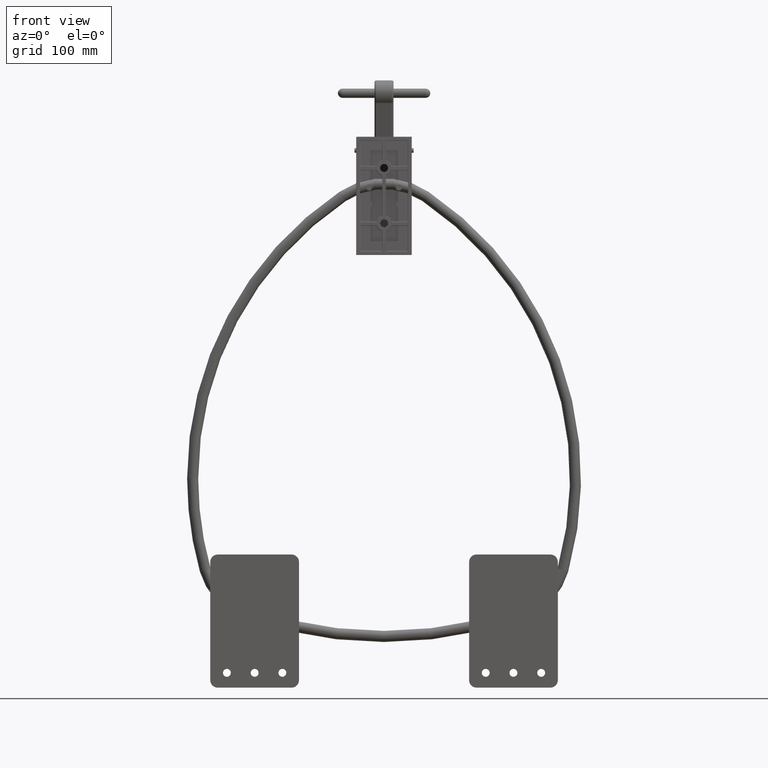
[diagram: clean part render]
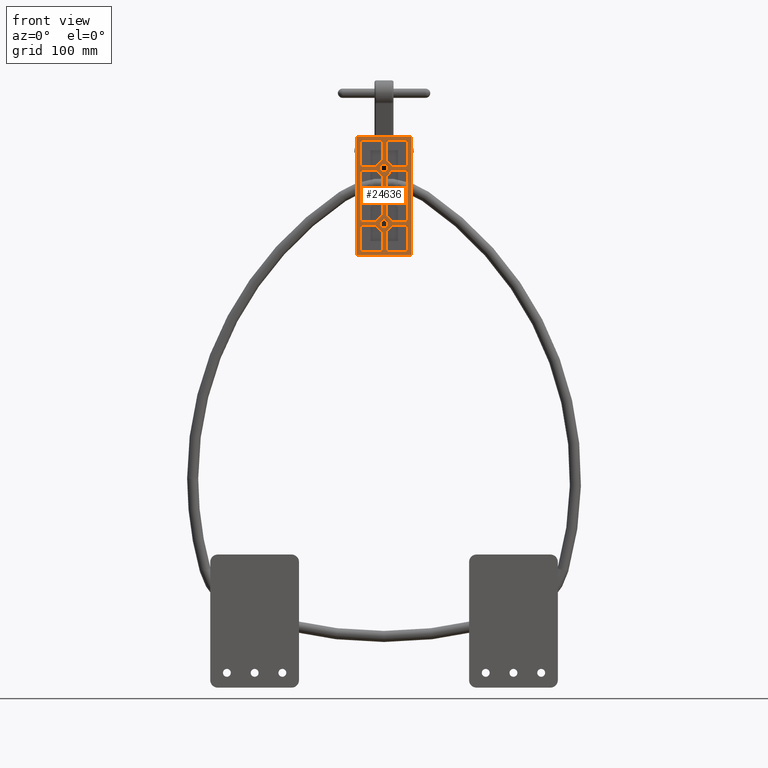
[diagram: same view with one face highlighted and labeled with its STEP entity id]
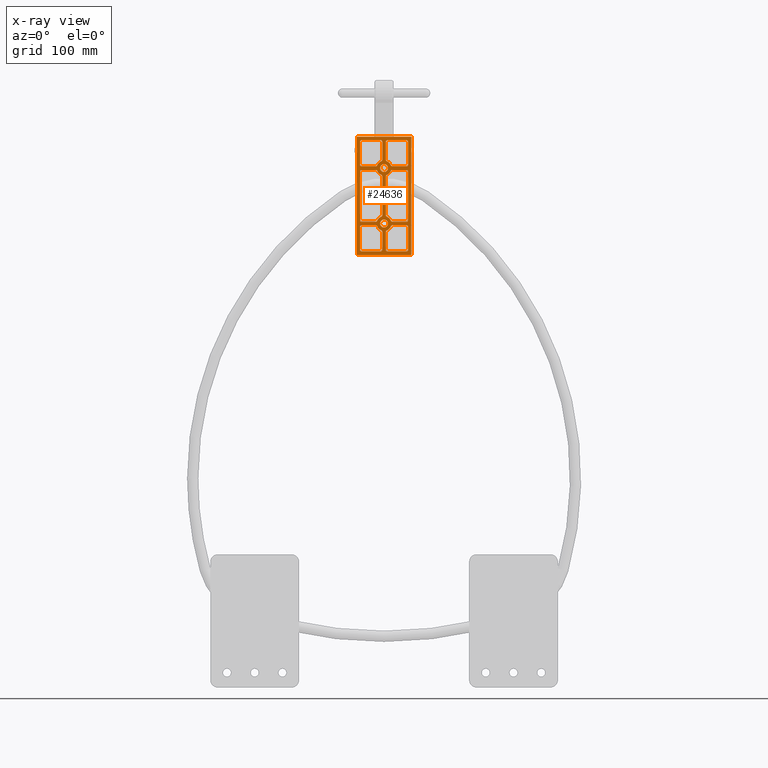
[diagram: x-ray of the same camera — body ghosted, the highlighted face saturated]
A machine part, front view. The second image highlights one B-rep face of the part: STEP entity #24636.
The next image is the same camera in x-ray: the body ghosted, the highlighted face saturated — about 0% of this face is hidden behind the body in this view.
In plain terms, the highlighted planar face has unit normal (0, 1, 0).
Its self-contained STEP definition (entity closure, byte-faithful):
#633 = DIRECTION ( 'NONE',  ( 0.0000000000000000000, -1.000000000000000000, 0.0000000000000000000 ) ) ;
#645 = CARTESIAN_POINT ( 'NONE',  ( -0.8335379963906127700, 0.0000000000000000000, 0.2722902887609477400 ) ) ;
#646 = CARTESIAN_POINT ( 'NONE',  ( -0.8750000000000001100, 0.0000000000000000000, 0.7710379963906123200 ) ) ;
#647 = DIRECTION ( 'NONE',  ( 0.0000000000000000000, 0.0000000000000000000, -1.000000000000000000 ) ) ;
#649 = DIRECTION ( 'NONE',  ( 0.0000000000000000000, 0.0000000000000000000, -1.000000000000000000 ) ) ;
#650 = CARTESIAN_POINT ( 'NONE',  ( -0.8335379963906127700, 0.0000000000000000000, 0.7710379963906125500 ) ) ;
#651 = DIRECTION ( 'NONE',  ( 0.0000000000000000000, -1.000000000000000000, 0.0000000000000000000 ) ) ;
#652 = DIRECTION ( 'NONE',  ( 0.0000000000000000000, 0.0000000000000000000, 1.000000000000000000 ) ) ;
#653 = CARTESIAN_POINT ( 'NONE',  ( 1.041462003609387300, 0.0000000000000000000, 0.2722902887609477400 ) ) ;
#654 = DIRECTION ( 'NONE',  ( 0.0000000000000000000, -1.000000000000000000, 0.0000000000000000000 ) ) ;
#655 = DIRECTION ( 'NONE',  ( 0.0000000000000000000, 0.0000000000000000000, -1.000000000000000000 ) ) ;
#656 = CARTESIAN_POINT ( 'NONE',  ( 0.9375000000000000000, 0.0000000000000000000, 0.0000000000000000000 ) ) ;
#657 = DIRECTION ( 'NONE',  ( -0.0000000000000000000, 1.000000000000000000, -0.0000000000000000000 ) ) ;
#658 = DIRECTION ( 'NONE',  ( 0.0000000000000000000, 0.0000000000000000000, -1.000000000000000000 ) ) ;
#4343 = EDGE_CURVE ( 'NONE', #22802, #22751, #6268, .T. ) ;
#4344 = EDGE_CURVE ( 'NONE', #22702, #22802, #6267, .T. ) ;
#4345 = EDGE_CURVE ( 'NONE', #22795, #22702, #6271, .T. ) ;
#4346 = EDGE_CURVE ( 'NONE', #22740, #22799, #6272, .T. ) ;
#4347 = EDGE_CURVE ( 'NONE', #22799, #22734, #6273, .T. ) ;
#4707 = EDGE_CURVE ( 'NONE', #22619, #22808, #31706, .T. ) ;
#4882 = EDGE_CURVE ( 'NONE', #22774, #22642, #22211, .T. ) ;
#4884 = EDGE_CURVE ( 'NONE', #22444, #22591, #22215, .T. ) ;
#4887 = EDGE_CURVE ( 'NONE', #22604, #22444, #22221, .T. ) ;
#4888 = EDGE_CURVE ( 'NONE', #22625, #22603, #22222, .T. ) ;
#4889 = EDGE_CURVE ( 'NONE', #22603, #22633, #22224, .T. ) ;
#4890 = EDGE_CURVE ( 'NONE', #22633, #22592, #22223, .T. ) ;
#4891 = EDGE_CURVE ( 'NONE', #22591, #22625, #22227, .T. ) ;
#4892 = EDGE_CURVE ( 'NONE', #22576, #22604, #22226, .T. ) ;
#4893 = EDGE_CURVE ( 'NONE', #22578, #22576, #22229, .T. ) ;
#4894 = EDGE_CURVE ( 'NONE', #22673, #22578, #22228, .T. ) ;
#4895 = EDGE_CURVE ( 'NONE', #22592, #22673, #22232, .T. ) ;
#4896 = EDGE_CURVE ( 'NONE', #22644, #22567, #22234, .T. ) ;
#4897 = EDGE_CURVE ( 'NONE', #22567, #22588, #22233, .T. ) ;
#4898 = EDGE_CURVE ( 'NONE', #22550, #22611, #22236, .T. ) ;
#4899 = EDGE_CURVE ( 'NONE', #22611, #22644, #22235, .T. ) ;
#4900 = EDGE_CURVE ( 'NONE', #22669, #22550, #22239, .T. ) ;
#4901 = EDGE_CURVE ( 'NONE', #22651, #22669, #22241, .T. ) ;
#4902 = EDGE_CURVE ( 'NONE', #22753, #22651, #22240, .T. ) ;
#4903 = EDGE_CURVE ( 'NONE', #22637, #22753, #22243, .T. ) ;
#4904 = EDGE_CURVE ( 'NONE', #22787, #22637, #22242, .T. ) ;
#4905 = EDGE_CURVE ( 'NONE', #22588, #22787, #22246, .T. ) ;
#4906 = EDGE_CURVE ( 'NONE', #22725, #22728, #22248, .T. ) ;
#4907 = EDGE_CURVE ( 'NONE', #22728, #22724, #22244, .T. ) ;
#4908 = EDGE_CURVE ( 'NONE', #22776, #22727, #22251, .T. ) ;
#4909 = EDGE_CURVE ( 'NONE', #22727, #22725, #22253, .T. ) ;
#4910 = EDGE_CURVE ( 'NONE', #22695, #22776, #22225, .T. ) ;
#4911 = EDGE_CURVE ( 'NONE', #22801, #22695, #22255, .T. ) ;
#4912 = EDGE_CURVE ( 'NONE', #22739, #22801, #22249, .T. ) ;
#4913 = EDGE_CURVE ( 'NONE', #22707, #22739, #22258, .T. ) ;
#4914 = EDGE_CURVE ( 'NONE', #22670, #22707, #22247, .T. ) ;
#4915 = EDGE_CURVE ( 'NONE', #22664, #22670, #22260, .T. ) ;
#4916 = EDGE_CURVE ( 'NONE', #22809, #22664, #22261, .T. ) ;
#4917 = EDGE_CURVE ( 'NONE', #22724, #22809, #22262, .T. ) ;
#4918 = EDGE_CURVE ( 'NONE', #22745, #22723, #22264, .T. ) ;
#4919 = EDGE_CURVE ( 'NONE', #22723, #22795, #22259, .T. ) ;
#4920 = EDGE_CURVE ( 'NONE', #22686, #22715, #22266, .T. ) ;
#4921 = EDGE_CURVE ( 'NONE', #22715, #22745, #22257, .T. ) ;
#4922 = EDGE_CURVE ( 'NONE', #22709, #22686, #22268, .T. ) ;
#4923 = EDGE_CURVE ( 'NONE', #22696, #22709, #22270, .T. ) ;
#4924 = EDGE_CURVE ( 'NONE', #22772, #22696, #22265, .T. ) ;
#4925 = EDGE_CURVE ( 'NONE', #22784, #22772, #22271, .T. ) ;
#4926 = EDGE_CURVE ( 'NONE', #22751, #22784, #22273, .T. ) ;
#5162 = AXIS2_PLACEMENT_3D ( 'NONE', #645, #633, #647 ) ;
#5166 = AXIS2_PLACEMENT_3D ( 'NONE', #650, #651, #652 ) ;
#5167 = AXIS2_PLACEMENT_3D ( 'NONE', #656, #657, #658 ) ;
#5168 = AXIS2_PLACEMENT_3D ( 'NONE', #653, #654, #655 ) ;
#5257 = AXIS2_PLACEMENT_3D ( 'NONE', #26125, #26126, #26127 ) ;
#5314 = AXIS2_PLACEMENT_3D ( 'NONE', #21360, #21372, #21374 ) ;
#5315 = AXIS2_PLACEMENT_3D ( 'NONE', #21376, #21378, #21380 ) ;
#5318 = AXIS2_PLACEMENT_3D ( 'NONE', #21381, #21384, #21386 ) ;
#5319 = AXIS2_PLACEMENT_3D ( 'NONE', #21403, #21405, #21407 ) ;
#5320 = AXIS2_PLACEMENT_3D ( 'NONE', #21392, #21395, #21397 ) ;
#5321 = AXIS2_PLACEMENT_3D ( 'NONE', #21413, #21415, #21417 ) ;
#5322 = AXIS2_PLACEMENT_3D ( 'NONE', #21440, #21443, #21444 ) ;
#5323 = AXIS2_PLACEMENT_3D ( 'NONE', #21419, #21422, #21424 ) ;
#5324 = AXIS2_PLACEMENT_3D ( 'NONE', #21429, #21432, #21434 ) ;
#5325 = AXIS2_PLACEMENT_3D ( 'NONE', #21466, #21469, #21471 ) ;
#5326 = AXIS2_PLACEMENT_3D ( 'NONE', #21446, #21449, #21451 ) ;
#5327 = AXIS2_PLACEMENT_3D ( 'NONE', #21456, #21459, #21461 ) ;
#5328 = AXIS2_PLACEMENT_3D ( 'NONE', #21525, #21528, #21530 ) ;
#5329 = AXIS2_PLACEMENT_3D ( 'NONE', #21472, #21476, #21478 ) ;
#5330 = AXIS2_PLACEMENT_3D ( 'NONE', #21474, #21493, #21494 ) ;
#5331 = AXIS2_PLACEMENT_3D ( 'NONE', #21462, #21486, #21488 ) ;
#5332 = AXIS2_PLACEMENT_3D ( 'NONE', #21532, #21534, #21536 ) ;
#5333 = AXIS2_PLACEMENT_3D ( 'NONE', #21484, #21502, #21503 ) ;
#5334 = AXIS2_PLACEMENT_3D ( 'NONE', #21490, #21512, #21514 ) ;
#5335 = AXIS2_PLACEMENT_3D ( 'NONE', #21499, #21522, #21523 ) ;
#5336 = AXIS2_PLACEMENT_3D ( 'NONE', #21538, #21541, #21543 ) ;
#5338 = AXIS2_PLACEMENT_3D ( 'NONE', #21549, #21568, #21570 ) ;
#5339 = AXIS2_PLACEMENT_3D ( 'NONE', #21520, #21551, #21553 ) ;
#5340 = AXIS2_PLACEMENT_3D ( 'NONE', #21540, #21562, #21564 ) ;
#5341 = AXIS2_PLACEMENT_3D ( 'NONE', #21566, #21585, #21587 ) ;
#5342 = AXIS2_PLACEMENT_3D ( 'NONE', #21559, #21579, #21581 ) ;
#5591 = AXIS2_PLACEMENT_3D ( 'NONE', #32918, #32944, #32945 ) ;
#5620 = AXIS2_PLACEMENT_3D ( 'NONE', #33037, #33039, #33040 ) ;
#5622 = AXIS2_PLACEMENT_3D ( 'NONE', #33054, #33057, #33058 ) ;
#6262 = VECTOR ( 'NONE', #649, 39.37007874015748100 ) ;
#6267 = LINE ( 'NONE', #646, #6262 ) ;
#6268 = CIRCLE ( 'NONE', #5162, 0.04146200360938727400 ) ;
#6271 = CIRCLE ( 'NONE', #5166, 0.04146200360938727400 ) ;
#6272 = CIRCLE ( 'NONE', #5168, 0.04146200360938727400 ) ;
#6273 = CIRCLE ( 'NONE', #5167, 0.2500000000000001100 ) ;
#7066 = ORIENTED_EDGE ( 'NONE', *, *, #4900, .F. ) ;
#7067 = ORIENTED_EDGE ( 'NONE', *, *, #4901, .F. ) ;
#7068 = ORIENTED_EDGE ( 'NONE', *, *, #4902, .F. ) ;
#7069 = ORIENTED_EDGE ( 'NONE', *, *, #4903, .F. ) ;
#7070 = ORIENTED_EDGE ( 'NONE', *, *, #4904, .F. ) ;
#7071 = ORIENTED_EDGE ( 'NONE', *, *, #4905, .F. ) ;
#7072 = ORIENTED_EDGE ( 'NONE', *, *, #4907, .F. ) ;
#7073 = ORIENTED_EDGE ( 'NONE', *, *, #4906, .F. ) ;
#7074 = ORIENTED_EDGE ( 'NONE', *, *, #4909, .F. ) ;
#7075 = ORIENTED_EDGE ( 'NONE', *, *, #4908, .F. ) ;
#7076 = ORIENTED_EDGE ( 'NONE', *, *, #4910, .F. ) ;
#7077 = ORIENTED_EDGE ( 'NONE', *, *, #4911, .F. ) ;
#7078 = ORIENTED_EDGE ( 'NONE', *, *, #4912, .F. ) ;
#7079 = ORIENTED_EDGE ( 'NONE', *, *, #4913, .F. ) ;
#7080 = ORIENTED_EDGE ( 'NONE', *, *, #4914, .F. ) ;
#7081 = ORIENTED_EDGE ( 'NONE', *, *, #4915, .F. ) ;
#7082 = ORIENTED_EDGE ( 'NONE', *, *, #4916, .F. ) ;
#7083 = ORIENTED_EDGE ( 'NONE', *, *, #4917, .F. ) ;
#7084 = ORIENTED_EDGE ( 'NONE', *, *, #4919, .F. ) ;
#7085 = ORIENTED_EDGE ( 'NONE', *, *, #4918, .F. ) ;
#7086 = ORIENTED_EDGE ( 'NONE', *, *, #4921, .F. ) ;
#7087 = ORIENTED_EDGE ( 'NONE', *, *, #4920, .F. ) ;
#7088 = ORIENTED_EDGE ( 'NONE', *, *, #4922, .F. ) ;
#7089 = ORIENTED_EDGE ( 'NONE', *, *, #4923, .F. ) ;
#7090 = ORIENTED_EDGE ( 'NONE', *, *, #4924, .F. ) ;
#7091 = ORIENTED_EDGE ( 'NONE', *, *, #4925, .F. ) ;
#7092 = ORIENTED_EDGE ( 'NONE', *, *, #4926, .F. ) ;
#7093 = ORIENTED_EDGE ( 'NONE', *, *, #4343, .F. ) ;
#7094 = ORIENTED_EDGE ( 'NONE', *, *, #4344, .F. ) ;
#7095 = ORIENTED_EDGE ( 'NONE', *, *, #4345, .F. ) ;
#7096 = ORIENTED_EDGE ( 'NONE', *, *, #4347, .F. ) ;
#7097 = ORIENTED_EDGE ( 'NONE', *, *, #4346, .F. ) ;
#7098 = ORIENTED_EDGE ( 'NONE', *, *, #7523, .F. ) ;
#7099 = ORIENTED_EDGE ( 'NONE', *, *, #4707, .F. ) ;
#7100 = ORIENTED_EDGE ( 'NONE', *, *, #7524, .F. ) ;
#7101 = ORIENTED_EDGE ( 'NONE', *, *, #7525, .F. ) ;
#7102 = ORIENTED_EDGE ( 'NONE', *, *, #32430, .F. ) ;
#7103 = ORIENTED_EDGE ( 'NONE', *, *, #32431, .F. ) ;
#7104 = ORIENTED_EDGE ( 'NONE', *, *, #32432, .F. ) ;
#7105 = ORIENTED_EDGE ( 'NONE', *, *, #32433, .F. ) ;
#7106 = ORIENTED_EDGE ( 'NONE', *, *, #32435, .F. ) ;
#7107 = ORIENTED_EDGE ( 'NONE', *, *, #32434, .F. ) ;
#7108 = ORIENTED_EDGE ( 'NONE', *, *, #32437, .F. ) ;
#7109 = ORIENTED_EDGE ( 'NONE', *, *, #32436, .F. ) ;
#7110 = ORIENTED_EDGE ( 'NONE', *, *, #32438, .F. ) ;
#7111 = ORIENTED_EDGE ( 'NONE', *, *, #32439, .F. ) ;
#7112 = ORIENTED_EDGE ( 'NONE', *, *, #32440, .F. ) ;
#7113 = ORIENTED_EDGE ( 'NONE', *, *, #32441, .F. ) ;
#7114 = ORIENTED_EDGE ( 'NONE', *, *, #32442, .F. ) ;
#7115 = ORIENTED_EDGE ( 'NONE', *, *, #32443, .F. ) ;
#7116 = ORIENTED_EDGE ( 'NONE', *, *, #32445, .T. ) ;
#7117 = ORIENTED_EDGE ( 'NONE', *, *, #8382, .T. ) ;
#7118 = ORIENTED_EDGE ( 'NONE', *, *, #32446, .T. ) ;
#7119 = ORIENTED_EDGE ( 'NONE', *, *, #8389, .T. ) ;
#7120 = ORIENTED_EDGE ( 'NONE', *, *, #4882, .T. ) ;
#7220 = ORIENTED_EDGE ( 'NONE', *, *, #4890, .F. ) ;
#7221 = ORIENTED_EDGE ( 'NONE', *, *, #4889, .F. ) ;
#7222 = ORIENTED_EDGE ( 'NONE', *, *, #4888, .F. ) ;
#7223 = ORIENTED_EDGE ( 'NONE', *, *, #4891, .F. ) ;
#7224 = ORIENTED_EDGE ( 'NONE', *, *, #4884, .F. ) ;
#7225 = ORIENTED_EDGE ( 'NONE', *, *, #4887, .F. ) ;
#7226 = ORIENTED_EDGE ( 'NONE', *, *, #4892, .F. ) ;
#7227 = ORIENTED_EDGE ( 'NONE', *, *, #4893, .F. ) ;
#7228 = ORIENTED_EDGE ( 'NONE', *, *, #4894, .F. ) ;
#7229 = ORIENTED_EDGE ( 'NONE', *, *, #4895, .F. ) ;
#7230 = ORIENTED_EDGE ( 'NONE', *, *, #4897, .F. ) ;
#7231 = ORIENTED_EDGE ( 'NONE', *, *, #4896, .F. ) ;
#7232 = ORIENTED_EDGE ( 'NONE', *, *, #4899, .F. ) ;
#7233 = ORIENTED_EDGE ( 'NONE', *, *, #4898, .F. ) ;
#7523 = EDGE_CURVE ( 'NONE', #22808, #22740, #24219, .T. ) ;
#7524 = EDGE_CURVE ( 'NONE', #22811, #22619, #24222, .T. ) ;
#7525 = EDGE_CURVE ( 'NONE', #22749, #22811, #24228, .T. ) ;
#8382 = EDGE_CURVE ( 'NONE', #31928, #31924, #24324, .T. ) ;
#8389 = EDGE_CURVE ( 'NONE', #23109, #23073, #24345, .T. ) ;
#11796 = PLANE ( 'NONE',  #25075 ) ;
#11800 = CARTESIAN_POINT ( 'NONE',  ( -2.000000000000003100, -2.185478394931410600E-015, 0.9375000000000000000 ) ) ;
#11801 = DIRECTION ( 'NONE',  ( 0.0000000000000000000, 1.000000000000000000, 0.0000000000000000000 ) ) ;
#11802 = DIRECTION ( 'NONE',  ( 0.0000000000000000000, -0.0000000000000000000, 1.000000000000000000 ) ) ;
#13023 = FACE_BOUND ( 'NONE', #18266, .T. ) ;
#13027 = FACE_BOUND ( 'NONE', #18267, .T. ) ;
#13030 = FACE_BOUND ( 'NONE', #18256, .T. ) ;
#13031 = FACE_BOUND ( 'NONE', #18263, .T. ) ;
#13032 = FACE_BOUND ( 'NONE', #18268, .T. ) ;
#13033 = FACE_BOUND ( 'NONE', #18264, .T. ) ;
#13034 = FACE_BOUND ( 'NONE', #18270, .T. ) ;
#13035 = FACE_BOUND ( 'NONE', #18265, .T. ) ;
#13036 = FACE_OUTER_BOUND ( 'NONE', #18271, .T. ) ;
#13439 = VECTOR ( 'NONE', #16881, 39.37007874015748100 ) ;
#13441 = LINE ( 'NONE', #16880, #13439 ) ;
#13443 = VECTOR ( 'NONE', #16877, 39.37007874015748100 ) ;
#13447 = LINE ( 'NONE', #16874, #13443 ) ;
#13448 = LINE ( 'NONE', #16888, #13452 ) ;
#13449 = LINE ( 'NONE', #16900, #13456 ) ;
#13450 = CIRCLE ( 'NONE', #25117, 0.04146200360938730900 ) ;
#13451 = LINE ( 'NONE', #16893, #13454 ) ;
#13452 = VECTOR ( 'NONE', #16889, 39.37007874015748100 ) ;
#13453 = CIRCLE ( 'NONE', #25184, 0.04146200360938737100 ) ;
#13454 = VECTOR ( 'NONE', #16894, 39.37007874015748100 ) ;
#13455 = CIRCLE ( 'NONE', #25276, 0.04146200360938730900 ) ;
#13456 = VECTOR ( 'NONE', #16901, 39.37007874015748100 ) ;
#13457 = CIRCLE ( 'NONE', #25281, 0.04146200360938727400 ) ;
#13458 = LINE ( 'NONE', #16895, #13459 ) ;
#13459 = VECTOR ( 'NONE', #16896, 39.37007874015748100 ) ;
#13460 = CIRCLE ( 'NONE', #25155, 0.04146200360938740600 ) ;
#13461 = LINE ( 'NONE', #16911, #13463 ) ;
#13462 = CIRCLE ( 'NONE', #25279, 0.04146200360938740600 ) ;
#13463 = VECTOR ( 'NONE', #16912, 39.37007874015748100 ) ;
#13464 = CIRCLE ( 'NONE', #25280, 0.2500000000000001100 ) ;
#13466 = CIRCLE ( 'NONE', #25278, 0.04146200360938737100 ) ;
#13467 = LINE ( 'NONE', #16921, #13469 ) ;
#13468 = CIRCLE ( 'NONE', #25282, 0.1329999999999999200 ) ;
#13469 = VECTOR ( 'NONE', #16922, 39.37007874015748100 ) ;
#13470 = CIRCLE ( 'NONE', #25277, 0.1329999999999999200 ) ;
#13473 = LINE ( 'NONE', #16923, #13474 ) ;
#13474 = VECTOR ( 'NONE', #16924, 39.37007874015748100 ) ;
#15625 = CARTESIAN_POINT ( 'NONE',  ( -0.9375000000000000000, -2.185478394931410600E-015, 0.1329999999999999200 ) ) ;
#15629 = CARTESIAN_POINT ( 'NONE',  ( -0.9375000000000000000, -2.185478394931410600E-015, -0.1329999999999999200 ) ) ;
#16873 = CARTESIAN_POINT ( 'NONE',  ( 1.209790288760948000, 0.0000000000000000000, 0.1039620036093873400 ) ) ;
#16874 = CARTESIAN_POINT ( 'NONE',  ( 1.875000000000002900, 0.0000000000000000000, 0.1039620036093876300 ) ) ;
#16875 = CARTESIAN_POINT ( 'NONE',  ( 1.833537996390615500, 0.0000000000000000000, 0.1039620036093873400 ) ) ;
#16876 = CARTESIAN_POINT ( 'NONE',  ( 1.833537996390615500, 0.0000000000000000000, -0.1039620036093873400 ) ) ;
#16877 = DIRECTION ( 'NONE',  ( 0.0000000000000000000, 0.0000000000000000000, 1.000000000000000000 ) ) ;
#16878 = DIRECTION ( 'NONE',  ( 0.0000000000000000000, -1.000000000000000000, 0.0000000000000000000 ) ) ;
#16879 = DIRECTION ( 'NONE',  ( 0.0000000000000000000, 0.0000000000000000000, 1.000000000000000000 ) ) ;
#16880 = CARTESIAN_POINT ( 'NONE',  ( 1.209790288760948000, 0.0000000000000000000, 0.06250000000000000000 ) ) ;
#16881 = DIRECTION ( 'NONE',  ( 1.000000000000000000, 0.0000000000000000000, 0.0000000000000000000 ) ) ;
#16882 = CARTESIAN_POINT ( 'NONE',  ( 1.833537996390615500, 0.0000000000000000000, -0.7710379963906125500 ) ) ;
#16883 = DIRECTION ( 'NONE',  ( 0.0000000000000000000, -1.000000000000000000, 0.0000000000000000000 ) ) ;
#16884 = DIRECTION ( 'NONE',  ( 0.0000000000000000000, 0.0000000000000000000, 1.000000000000000000 ) ) ;
#16885 = CARTESIAN_POINT ( 'NONE',  ( 1.041462003609387300, 0.0000000000000000000, -0.7710379963906125500 ) ) ;
#16886 = DIRECTION ( 'NONE',  ( 0.0000000000000000000, -1.000000000000000000, 0.0000000000000000000 ) ) ;
#16887 = DIRECTION ( 'NONE',  ( 0.0000000000000000000, 0.0000000000000000000, -1.000000000000000000 ) ) ;
#16888 = CARTESIAN_POINT ( 'NONE',  ( 1.209790288760948000, 0.0000000000000000000, -0.06250000000000000000 ) ) ;
#16889 = DIRECTION ( 'NONE',  ( -1.000000000000000000, -0.0000000000000000000, -0.0000000000000000000 ) ) ;
#16890 = CARTESIAN_POINT ( 'NONE',  ( 1.041462003609387600, 0.0000000000000000000, -0.2722902887609476900 ) ) ;
#16891 = DIRECTION ( 'NONE',  ( 0.0000000000000000000, -1.000000000000000000, 0.0000000000000000000 ) ) ;
#16892 = DIRECTION ( 'NONE',  ( 0.0000000000000000000, 0.0000000000000000000, -1.000000000000000000 ) ) ;
#16893 = CARTESIAN_POINT ( 'NONE',  ( 1.875000000000002900, 0.0000000000000000000, -0.7710379963906123200 ) ) ;
#16894 = DIRECTION ( 'NONE',  ( 0.0000000000000000000, 0.0000000000000000000, 1.000000000000000000 ) ) ;
#16895 = CARTESIAN_POINT ( 'NONE',  ( 1.041462003609387600, 0.0000000000000000000, -0.8125000000000000000 ) ) ;
#16896 = DIRECTION ( 'NONE',  ( 1.000000000000000000, 0.0000000000000000000, 0.0000000000000000000 ) ) ;
#16897 = CARTESIAN_POINT ( 'NONE',  ( 0.9375000000000000000, 0.0000000000000000000, 0.0000000000000000000 ) ) ;
#16898 = DIRECTION ( 'NONE',  ( 0.0000000000000000000, -1.000000000000000000, 0.0000000000000000000 ) ) ;
#16899 = DIRECTION ( 'NONE',  ( 0.0000000000000000000, 0.0000000000000000000, -1.000000000000000000 ) ) ;
#16900 = CARTESIAN_POINT ( 'NONE',  ( 1.000000000000000200, 0.0000000000000000000, -0.2722902887609476900 ) ) ;
#16901 = DIRECTION ( 'NONE',  ( -2.738707318222647100E-016, 0.0000000000000000000, -1.000000000000000000 ) ) ;
#16902 = CARTESIAN_POINT ( 'NONE',  ( 1.209790288760948000, 0.0000000000000000000, -0.1039620036093873200 ) ) ;
#16903 = DIRECTION ( 'NONE',  ( 0.0000000000000000000, -1.000000000000000000, 0.0000000000000000000 ) ) ;
#16904 = DIRECTION ( 'NONE',  ( 0.0000000000000000000, 0.0000000000000000000, 1.000000000000000000 ) ) ;
#16905 = CARTESIAN_POINT ( 'NONE',  ( -0.9375000000000000000, -2.185478394931410600E-015, 0.0000000000000000000 ) ) ;
#16906 = DIRECTION ( 'NONE',  ( -0.0000000000000000000, 1.000000000000000000, -0.0000000000000000000 ) ) ;
#16907 = DIRECTION ( 'NONE',  ( 0.0000000000000000000, 0.0000000000000000000, -1.000000000000000000 ) ) ;
#16908 = CARTESIAN_POINT ( 'NONE',  ( 0.9375000000000000000, -2.185478394931410600E-015, 0.0000000000000000000 ) ) ;
#16909 = DIRECTION ( 'NONE',  ( 0.0000000000000000000, -1.000000000000000000, 0.0000000000000000000 ) ) ;
#16910 = DIRECTION ( 'NONE',  ( 0.0000000000000000000, 0.0000000000000000000, -1.000000000000000000 ) ) ;
#16911 = CARTESIAN_POINT ( 'NONE',  ( -2.000000000000003100, -2.185478394931410600E-015, -0.9218749999999998900 ) ) ;
#16912 = DIRECTION ( 'NONE',  ( 1.000000000000000000, 0.0000000000000000000, 0.0000000000000000000 ) ) ;
#16914 = DIRECTION ( 'NONE',  ( -0.0000000000000000000, 1.000000000000000000, -0.0000000000000000000 ) ) ;
#16915 = DIRECTION ( 'NONE',  ( 0.0000000000000000000, 0.0000000000000000000, 1.000000000000000000 ) ) ;
#16917 = DIRECTION ( 'NONE',  ( -0.0000000000000000000, 1.000000000000000000, -0.0000000000000000000 ) ) ;
#16918 = DIRECTION ( 'NONE',  ( 0.0000000000000000000, 0.0000000000000000000, 1.000000000000000000 ) ) ;
#16921 = CARTESIAN_POINT ( 'NONE',  ( -2.000000000000003100, -2.185478394931410600E-015, 0.9218750000000000000 ) ) ;
#16922 = DIRECTION ( 'NONE',  ( -1.000000000000000000, -0.0000000000000000000, -0.0000000000000000000 ) ) ;
#16923 = CARTESIAN_POINT ( 'NONE',  ( 2.000000000000002700, -2.185478394931410600E-015, 0.9375000000000000000 ) ) ;
#16924 = DIRECTION ( 'NONE',  ( -0.0000000000000000000, -0.0000000000000000000, -1.000000000000000000 ) ) ;
#18256 = EDGE_LOOP ( 'NONE', ( #7220, #7221, #7222, #7223, #7224, #7225, #7226, #7227, #7228, #7229 ) ) ;
#18263 = EDGE_LOOP ( 'NONE', ( #7230, #7231, #7232, #7233, #7066, #7067, #7068, #7069, #7070, #7071 ) ) ;
#18264 = EDGE_LOOP ( 'NONE', ( #7072, #7073, #7074, #7075, #7076, #7077, #7078, #7079, #7080, #7081, #7082, #7083 ) ) ;
#18265 = EDGE_LOOP ( 'NONE', ( #7084, #7085, #7086, #7087, #7088, #7089, #7090, #7091, #7092, #7093, #7094, #7095 ) ) ;
#18266 = EDGE_LOOP ( 'NONE', ( #7096, #7097, #7098, #7099, #7100, #7101, #7102, #7103, #7104, #7105 ) ) ;
#18267 = EDGE_LOOP ( 'NONE', ( #7106, #7107, #7108, #7109, #7110, #7111, #7112, #7113, #7114, #7115 ) ) ;
#18268 = EDGE_LOOP ( 'NONE', ( #7116, #7117 ) ) ;
#18270 = EDGE_LOOP ( 'NONE', ( #7118, #7119 ) ) ;
#18271 = EDGE_LOOP ( 'NONE', ( #7120, #32093, #32094, #32095 ) ) ;
#20526 = CARTESIAN_POINT ( 'NONE',  ( -1.000000000000000000, 0.0000000000000000000, -0.7710379963906123200 ) ) ;
#20589 = CARTESIAN_POINT ( 'NONE',  ( -1.026672861575393700, 0.0000000000000000000, 0.2335555624652423400 ) ) ;
#20597 = CARTESIAN_POINT ( 'NONE',  ( 1.833537996390615500, -2.185478394931410600E-015, -0.06249999999999995100 ) ) ;
#20598 = CARTESIAN_POINT ( 'NONE',  ( -1.041462003609387600, -2.185478394931410600E-015, 0.8125000000000000000 ) ) ;
#20603 = CARTESIAN_POINT ( 'NONE',  ( -1.833537996390615800, 0.0000000000000000000, -0.8124999999999998900 ) ) ;
#20605 = CARTESIAN_POINT ( 'NONE',  ( -1.875000000000003300, -0.0000000000000000000, -0.7710379963906123200 ) ) ;
#20611 = CARTESIAN_POINT ( 'NONE',  ( -1.833537996390615800, 0.0000000000000000000, 0.8124999999999998900 ) ) ;
#20612 = CARTESIAN_POINT ( 'NONE',  ( 1.875000000000002900, 0.0000000000000000000, 0.1039620036093876300 ) ) ;
#20613 = CARTESIAN_POINT ( 'NONE',  ( -1.000000000000000000, -0.0000000000000000000, -0.2722902887609477400 ) ) ;
#20614 = CARTESIAN_POINT ( 'NONE',  ( -1.833537996390615800, -0.0000000000000000000, -0.06250000000000000000 ) ) ;
#20620 = CARTESIAN_POINT ( 'NONE',  ( -1.171055562465242300, 0.0000000000000000000, -0.08917286157539379400 ) ) ;
#20621 = CARTESIAN_POINT ( 'NONE',  ( -1.041462003609387600, -0.0000000000000000000, -0.8125000000000000000 ) ) ;
#20625 = CARTESIAN_POINT ( 'NONE',  ( -1.000000000000000000, 0.0000000000000000000, 0.2722902887609477400 ) ) ;
#20629 = CARTESIAN_POINT ( 'NONE',  ( 1.041462003609387600, 0.0000000000000000000, 0.8124999999999998900 ) ) ;
#20633 = CARTESIAN_POINT ( 'NONE',  ( -1.026672861575393700, 0.0000000000000000000, -0.2335555624652423400 ) ) ;
#20638 = CARTESIAN_POINT ( 'NONE',  ( -1.209790288760948000, -2.185478394931410600E-015, -0.06249999999999995100 ) ) ;
#20640 = CARTESIAN_POINT ( 'NONE',  ( -1.875000000000003300, 0.0000000000000000000, 0.1039620036093876300 ) ) ;
#20643 = CARTESIAN_POINT ( 'NONE',  ( -2.000000000000003100, -2.185478394931410600E-015, -0.9218749999999998900 ) ) ;
#20644 = CARTESIAN_POINT ( 'NONE',  ( -1.000000000000000000, 0.0000000000000000000, 0.7710379963906123200 ) ) ;
#20648 = CARTESIAN_POINT ( 'NONE',  ( -1.209790288760948000, 0.0000000000000000000, 0.06249999999999995100 ) ) ;
#20656 = CARTESIAN_POINT ( 'NONE',  ( -0.8483271384246062800, 0.0000000000000000000, -0.2335555624652423400 ) ) ;
#20660 = CARTESIAN_POINT ( 'NONE',  ( -1.171055562465242300, 0.0000000000000000000, 0.08917286157539389100 ) ) ;
#20661 = CARTESIAN_POINT ( 'NONE',  ( -0.8750000000000001100, 0.0000000000000000000, -0.2722902887609477400 ) ) ;
#20664 = CARTESIAN_POINT ( 'NONE',  ( -1.875000000000003300, -0.0000000000000000000, -0.1039620036093876300 ) ) ;
#20672 = CARTESIAN_POINT ( 'NONE',  ( 0.8483271384246062800, 0.0000000000000000000, 0.2335555624652423400 ) ) ;
#20674 = CARTESIAN_POINT ( 'NONE',  ( 2.000000000000002700, -2.185478394931410600E-015, 0.9218750000000000000 ) ) ;
#20676 = CARTESIAN_POINT ( 'NONE',  ( 1.833537996390615300, 0.0000000000000000000, -0.8124999999999998900 ) ) ;
#20677 = CARTESIAN_POINT ( 'NONE',  ( 1.209790288760948000, 0.0000000000000000000, -0.06249999999999995800 ) ) ;
#20678 = CARTESIAN_POINT ( 'NONE',  ( 0.8750000000000001100, 0.0000000000000000000, -0.7710379963906123200 ) ) ;
#20679 = CARTESIAN_POINT ( 'NONE',  ( 0.6652097112390522600, 0.0000000000000000000, 0.06250000000000001400 ) ) ;
#20682 = CARTESIAN_POINT ( 'NONE',  ( 1.000000000000000000, 0.0000000000000000000, -0.7710379963906123200 ) ) ;
#20683 = CARTESIAN_POINT ( 'NONE',  ( -0.8750000000000001100, 0.0000000000000000000, 0.7710379963906123200 ) ) ;
#20685 = CARTESIAN_POINT ( 'NONE',  ( 1.171055562465242300, 0.0000000000000000000, -0.08917286157539380800 ) ) ;
#20686 = CARTESIAN_POINT ( 'NONE',  ( -0.8750000000000001100, -0.0000000000000000000, -0.7710379963906123200 ) ) ;
#20688 = CARTESIAN_POINT ( 'NONE',  ( 0.7039444375347576600, 0.0000000000000000000, 0.08917286157539389100 ) ) ;
#20693 = CARTESIAN_POINT ( 'NONE',  ( 1.875000000000002900, 0.0000000000000000000, -0.1039620036093876300 ) ) ;
#20694 = CARTESIAN_POINT ( 'NONE',  ( 0.8750000000000001100, 0.0000000000000000000, 0.2722902887609477400 ) ) ;
#20696 = CARTESIAN_POINT ( 'NONE',  ( 1.875000000000002900, 0.0000000000000000000, -0.7710379963906123200 ) ) ;
#20702 = CARTESIAN_POINT ( 'NONE',  ( 0.8335379963906125500, -2.185478394931410600E-015, 0.8125000000000000000 ) ) ;
#20703 = CARTESIAN_POINT ( 'NONE',  ( -0.6652097112390522600, -0.0000000000000000000, -0.06249999999999997200 ) ) ;
#20704 = CARTESIAN_POINT ( 'NONE',  ( 0.7039444375347576600, 0.0000000000000000000, -0.08917286157539379400 ) ) ;
#20706 = CARTESIAN_POINT ( 'NONE',  ( 0.8483271384246060500, 0.0000000000000000000, -0.2335555624652422000 ) ) ;
#20707 = CARTESIAN_POINT ( 'NONE',  ( 0.6652097112390523700, -2.185478394931410600E-015, -0.06250000000000000000 ) ) ;
#20713 = CARTESIAN_POINT ( 'NONE',  ( 1.171055562465242300, 0.0000000000000000000, 0.08917286157539385000 ) ) ;
#20718 = CARTESIAN_POINT ( 'NONE',  ( -0.8335379963906124300, 0.0000000000000000000, -0.8124999999999998900 ) ) ;
#20719 = CARTESIAN_POINT ( 'NONE',  ( 1.000000000000000000, 0.0000000000000000000, 0.2722902887609477400 ) ) ;
#20723 = CARTESIAN_POINT ( 'NONE',  ( 0.8750000000000001100, 0.0000000000000000000, 0.7710379963906123200 ) ) ;
#20727 = CARTESIAN_POINT ( 'NONE',  ( 1.875000000000002900, 0.0000000000000000000, 0.7710379963906123200 ) ) ;
#20729 = CARTESIAN_POINT ( 'NONE',  ( -0.8483271384246062800, 0.0000000000000000000, 0.2335555624652423400 ) ) ;
#20731 = CARTESIAN_POINT ( 'NONE',  ( -1.833537996390615800, 0.0000000000000000000, 0.06250000000000000000 ) ) ;
#20735 = CARTESIAN_POINT ( 'NONE',  ( 1.833537996390615300, 0.0000000000000000000, 0.06250000000000002800 ) ) ;
#20739 = CARTESIAN_POINT ( 'NONE',  ( 1.000000000000000200, 0.0000000000000000000, -0.2722902887609476900 ) ) ;
#20740 = CARTESIAN_POINT ( 'NONE',  ( 2.000000000000002700, -2.185478394931410600E-015, -0.9218749999999998900 ) ) ;
#20746 = CARTESIAN_POINT ( 'NONE',  ( 1.026672861575393900, 0.0000000000000000000, -0.2335555624652422000 ) ) ;
#20749 = CARTESIAN_POINT ( 'NONE',  ( 1.041462003609387600, 0.0000000000000000000, -0.8125000000000000000 ) ) ;
#20750 = CARTESIAN_POINT ( 'NONE',  ( -0.6652097112390522600, 0.0000000000000000000, 0.06249999999999996500 ) ) ;
#20752 = CARTESIAN_POINT ( 'NONE',  ( -2.000000000000003100, -2.185478394931410600E-015, 0.9218750000000000000 ) ) ;
#20754 = CARTESIAN_POINT ( 'NONE',  ( 0.8750000000000000000, 0.0000000000000000000, -0.2722902887609476900 ) ) ;
#20758 = CARTESIAN_POINT ( 'NONE',  ( 1.209790288760948000, 0.0000000000000000000, 0.06250000000000000000 ) ) ;
#20762 = CARTESIAN_POINT ( 'NONE',  ( -0.7039444375347576600, 0.0000000000000000000, 0.08917286157539378000 ) ) ;
#20765 = CARTESIAN_POINT ( 'NONE',  ( -1.875000000000003300, 0.0000000000000000000, 0.7710379963906123200 ) ) ;
#20773 = CARTESIAN_POINT ( 'NONE',  ( -0.8335379963906124300, 0.0000000000000000000, 0.8124999999999998900 ) ) ;
#20777 = CARTESIAN_POINT ( 'NONE',  ( 1.026672861575393700, -2.185478394931410600E-015, 0.2335555624652423400 ) ) ;
#20779 = CARTESIAN_POINT ( 'NONE',  ( 0.8335379963906124300, 0.0000000000000000000, -0.8125000000000000000 ) ) ;
#20780 = CARTESIAN_POINT ( 'NONE',  ( -0.8750000000000001100, 0.0000000000000000000, 0.2722902887609477400 ) ) ;
#20786 = CARTESIAN_POINT ( 'NONE',  ( 1.000000000000000000, 0.0000000000000000000, 0.7710379963906123200 ) ) ;
#20787 = CARTESIAN_POINT ( 'NONE',  ( -0.7039444375347576600, 0.0000000000000000000, -0.08917286157539379400 ) ) ;
#20789 = CARTESIAN_POINT ( 'NONE',  ( 1.833537996390615300, 0.0000000000000000000, 0.8125000000000000000 ) ) ;
#21345 = CARTESIAN_POINT ( 'NONE',  ( -2.000000000000003100, -2.185478394931410600E-015, 0.9375000000000000000 ) ) ;
#21347 = DIRECTION ( 'NONE',  ( -0.0000000000000000000, -0.0000000000000000000, -1.000000000000000000 ) ) ;
#21354 = CARTESIAN_POINT ( 'NONE',  ( -1.833537996390615800, -0.0000000000000000000, -0.06250000000000000000 ) ) ;
#21356 = CARTESIAN_POINT ( 'NONE',  ( -1.000000000000000000, -0.0000000000000000000, -0.2722902887609477400 ) ) ;
#21358 = DIRECTION ( 'NONE',  ( -0.0000000000000000000, -0.0000000000000000000, 1.000000000000000000 ) ) ;
#21360 = CARTESIAN_POINT ( 'NONE',  ( -1.041462003609387300, -0.0000000000000000000, -0.7710379963906125500 ) ) ;
#21372 = DIRECTION ( 'NONE',  ( 0.0000000000000000000, -1.000000000000000000, 0.0000000000000000000 ) ) ;
#21374 = DIRECTION ( 'NONE',  ( 0.0000000000000000000, 0.0000000000000000000, 1.000000000000000000 ) ) ;
#21376 = CARTESIAN_POINT ( 'NONE',  ( -0.9375000000000000000, 0.0000000000000000000, 0.0000000000000000000 ) ) ;
#21378 = DIRECTION ( 'NONE',  ( -0.0000000000000000000, 1.000000000000000000, -0.0000000000000000000 ) ) ;
#21380 = DIRECTION ( 'NONE',  ( 0.0000000000000000000, 0.0000000000000000000, -1.000000000000000000 ) ) ;
#21381 = CARTESIAN_POINT ( 'NONE',  ( -1.209790288760948000, -0.0000000000000000000, -0.1039620036093873400 ) ) ;
#21384 = DIRECTION ( 'NONE',  ( 0.0000000000000000000, -1.000000000000000000, 0.0000000000000000000 ) ) ;
#21386 = DIRECTION ( 'NONE',  ( 0.0000000000000000000, 0.0000000000000000000, 1.000000000000000000 ) ) ;
#21389 = CARTESIAN_POINT ( 'NONE',  ( -1.833537996390615800, -0.0000000000000000000, -0.8125000000000000000 ) ) ;
#21391 = DIRECTION ( 'NONE',  ( -1.000000000000000000, -0.0000000000000000000, -0.0000000000000000000 ) ) ;
#21392 = CARTESIAN_POINT ( 'NONE',  ( -1.041462003609387300, -0.0000000000000000000, -0.2722902887609477400 ) ) ;
#21395 = DIRECTION ( 'NONE',  ( 0.0000000000000000000, -1.000000000000000000, 0.0000000000000000000 ) ) ;
#21397 = DIRECTION ( 'NONE',  ( 0.0000000000000000000, 0.0000000000000000000, 1.000000000000000000 ) ) ;
#21399 = CARTESIAN_POINT ( 'NONE',  ( -1.875000000000003300, -0.0000000000000000000, -0.1039620036093876300 ) ) ;
#21401 = DIRECTION ( 'NONE',  ( 1.000000000000000000, 0.0000000000000000000, 0.0000000000000000000 ) ) ;
#21403 = CARTESIAN_POINT ( 'NONE',  ( -1.833537996390616000, -0.0000000000000000000, -0.7710379963906125500 ) ) ;
#21405 = DIRECTION ( 'NONE',  ( 0.0000000000000000000, -1.000000000000000000, 0.0000000000000000000 ) ) ;
#21407 = DIRECTION ( 'NONE',  ( 0.0000000000000000000, 0.0000000000000000000, 1.000000000000000000 ) ) ;
#21409 = CARTESIAN_POINT ( 'NONE',  ( -1.041462003609387600, 0.0000000000000000000, 0.8125000000000000000 ) ) ;
#21411 = DIRECTION ( 'NONE',  ( 0.0000000000000000000, 0.0000000000000000000, -1.000000000000000000 ) ) ;
#21413 = CARTESIAN_POINT ( 'NONE',  ( -1.833537996390616000, -0.0000000000000000000, -0.1039620036093873400 ) ) ;
#21415 = DIRECTION ( 'NONE',  ( 0.0000000000000000000, -1.000000000000000000, 0.0000000000000000000 ) ) ;
#21417 = DIRECTION ( 'NONE',  ( 0.0000000000000000000, 0.0000000000000000000, -1.000000000000000000 ) ) ;
#21419 = CARTESIAN_POINT ( 'NONE',  ( -1.041462003609387300, 0.0000000000000000000, 0.7710379963906125500 ) ) ;
#21422 = DIRECTION ( 'NONE',  ( 0.0000000000000000000, -1.000000000000000000, 0.0000000000000000000 ) ) ;
#21424 = DIRECTION ( 'NONE',  ( 0.0000000000000000000, 0.0000000000000000000, -1.000000000000000000 ) ) ;
#21426 = CARTESIAN_POINT ( 'NONE',  ( -1.000000000000000000, 0.0000000000000000000, 0.7710379963906123200 ) ) ;
#21428 = DIRECTION ( 'NONE',  ( -1.000000000000000000, 0.0000000000000000000, 0.0000000000000000000 ) ) ;
#21429 = CARTESIAN_POINT ( 'NONE',  ( -1.041462003609387300, 0.0000000000000000000, 0.2722902887609477400 ) ) ;
#21432 = DIRECTION ( 'NONE',  ( 0.0000000000000000000, -1.000000000000000000, 0.0000000000000000000 ) ) ;
#21434 = DIRECTION ( 'NONE',  ( 0.0000000000000000000, 0.0000000000000000000, 1.000000000000000000 ) ) ;
#21435 = CARTESIAN_POINT ( 'NONE',  ( -1.833537996390615800, 0.0000000000000000000, 0.06250000000000000000 ) ) ;
#21438 = DIRECTION ( 'NONE',  ( -0.0000000000000000000, -0.0000000000000000000, 1.000000000000000000 ) ) ;
#21440 = CARTESIAN_POINT ( 'NONE',  ( -0.9375000000000000000, 0.0000000000000000000, 0.0000000000000000000 ) ) ;
#21443 = DIRECTION ( 'NONE',  ( -0.0000000000000000000, 1.000000000000000000, -0.0000000000000000000 ) ) ;
#21444 = DIRECTION ( 'NONE',  ( 0.0000000000000000000, 0.0000000000000000000, -1.000000000000000000 ) ) ;
#21446 = CARTESIAN_POINT ( 'NONE',  ( -1.209790288760948000, 0.0000000000000000000, 0.1039620036093873200 ) ) ;
#21449 = DIRECTION ( 'NONE',  ( 0.0000000000000000000, -1.000000000000000000, 0.0000000000000000000 ) ) ;
#21451 = DIRECTION ( 'NONE',  ( 0.0000000000000000000, 0.0000000000000000000, -1.000000000000000000 ) ) ;
#21453 = CARTESIAN_POINT ( 'NONE',  ( -1.875000000000003300, 0.0000000000000000000, 0.7710379963906123200 ) ) ;
#21455 = DIRECTION ( 'NONE',  ( 1.000000000000000000, 0.0000000000000000000, -1.368666349515377200E-017 ) ) ;
#21456 = CARTESIAN_POINT ( 'NONE',  ( -1.833537996390616000, 0.0000000000000000000, 0.1039620036093873400 ) ) ;
#21459 = DIRECTION ( 'NONE',  ( 0.0000000000000000000, -1.000000000000000000, 0.0000000000000000000 ) ) ;
#21461 = DIRECTION ( 'NONE',  ( 0.0000000000000000000, 0.0000000000000000000, 1.000000000000000000 ) ) ;
#21462 = CARTESIAN_POINT ( 'NONE',  ( 0.8335379963906125500, 0.0000000000000000000, -0.2722902887609476900 ) ) ;
#21465 = DIRECTION ( 'NONE',  ( 0.0000000000000000000, 0.0000000000000000000, -1.000000000000000000 ) ) ;
#21466 = CARTESIAN_POINT ( 'NONE',  ( -1.833537996390616000, 0.0000000000000000000, 0.7710379963906125500 ) ) ;
#21469 = DIRECTION ( 'NONE',  ( 0.0000000000000000000, -1.000000000000000000, 0.0000000000000000000 ) ) ;
#21471 = DIRECTION ( 'NONE',  ( 0.0000000000000000000, 0.0000000000000000000, -1.000000000000000000 ) ) ;
#21472 = CARTESIAN_POINT ( 'NONE',  ( 0.6652097112390521500, 0.0000000000000000000, -0.1039620036093873400 ) ) ;
#21474 = CARTESIAN_POINT ( 'NONE',  ( 0.9375000000000000000, 0.0000000000000000000, 0.0000000000000000000 ) ) ;
#21476 = DIRECTION ( 'NONE',  ( 0.0000000000000000000, -1.000000000000000000, 0.0000000000000000000 ) ) ;
#21478 = DIRECTION ( 'NONE',  ( 0.0000000000000000000, 0.0000000000000000000, 1.000000000000000000 ) ) ;
#21480 = CARTESIAN_POINT ( 'NONE',  ( -0.6652097112390522600, -0.0000000000000000000, -0.06249999999999997200 ) ) ;
#21482 = DIRECTION ( 'NONE',  ( -1.000000000000000000, -0.0000000000000000000, 1.925037661649439000E-017 ) ) ;
#21484 = CARTESIAN_POINT ( 'NONE',  ( 0.8335379963906126600, 0.0000000000000000000, -0.7710379963906125500 ) ) ;
#21486 = DIRECTION ( 'NONE',  ( 0.0000000000000000000, -1.000000000000000000, 0.0000000000000000000 ) ) ;
#21488 = DIRECTION ( 'NONE',  ( 0.0000000000000000000, 0.0000000000000000000, -1.000000000000000000 ) ) ;
#21490 = CARTESIAN_POINT ( 'NONE',  ( -0.8335379963906127700, -0.0000000000000000000, -0.7710379963906125500 ) ) ;
#21493 = DIRECTION ( 'NONE',  ( -0.0000000000000000000, 1.000000000000000000, -0.0000000000000000000 ) ) ;
#21494 = DIRECTION ( 'NONE',  ( 0.0000000000000000000, 0.0000000000000000000, -1.000000000000000000 ) ) ;
#21496 = CARTESIAN_POINT ( 'NONE',  ( 0.8750000000000000000, 0.0000000000000000000, -0.2722902887609476900 ) ) ;
#21498 = DIRECTION ( 'NONE',  ( -2.738707318222647100E-016, -0.0000000000000000000, 1.000000000000000000 ) ) ;
#21499 = CARTESIAN_POINT ( 'NONE',  ( -0.8335379963906127700, -0.0000000000000000000, -0.2722902887609477400 ) ) ;
#21502 = DIRECTION ( 'NONE',  ( 0.0000000000000000000, -1.000000000000000000, 0.0000000000000000000 ) ) ;
#21503 = DIRECTION ( 'NONE',  ( 0.0000000000000000000, 0.0000000000000000000, 1.000000000000000000 ) ) ;
#21506 = CARTESIAN_POINT ( 'NONE',  ( -0.8335379963906124300, -0.0000000000000000000, -0.8125000000000000000 ) ) ;
#21508 = DIRECTION ( 'NONE',  ( 1.000000000000000000, 0.0000000000000000000, 0.0000000000000000000 ) ) ;
#21512 = DIRECTION ( 'NONE',  ( 0.0000000000000000000, -1.000000000000000000, 0.0000000000000000000 ) ) ;
#21514 = DIRECTION ( 'NONE',  ( 0.0000000000000000000, 0.0000000000000000000, -1.000000000000000000 ) ) ;
#21516 = CARTESIAN_POINT ( 'NONE',  ( -0.8750000000000001100, -0.0000000000000000000, -0.2722902887609477400 ) ) ;
#21518 = DIRECTION ( 'NONE',  ( 0.0000000000000000000, 0.0000000000000000000, -1.000000000000000000 ) ) ;
#21520 = CARTESIAN_POINT ( 'NONE',  ( 0.8335379963906127700, 0.0000000000000000000, 0.2722902887609477400 ) ) ;
#21522 = DIRECTION ( 'NONE',  ( 0.0000000000000000000, -1.000000000000000000, 0.0000000000000000000 ) ) ;
#21523 = DIRECTION ( 'NONE',  ( 0.0000000000000000000, 0.0000000000000000000, -1.000000000000000000 ) ) ;
#21525 = CARTESIAN_POINT ( 'NONE',  ( -0.9375000000000000000, 0.0000000000000000000, 0.0000000000000000000 ) ) ;
#21528 = DIRECTION ( 'NONE',  ( -0.0000000000000000000, 1.000000000000000000, -0.0000000000000000000 ) ) ;
#21530 = DIRECTION ( 'NONE',  ( 0.0000000000000000000, 0.0000000000000000000, -1.000000000000000000 ) ) ;
#21532 = CARTESIAN_POINT ( 'NONE',  ( -0.6652097112390522600, -0.0000000000000000000, -0.1039620036093873200 ) ) ;
#21534 = DIRECTION ( 'NONE',  ( 0.0000000000000000000, -1.000000000000000000, 0.0000000000000000000 ) ) ;
#21536 = DIRECTION ( 'NONE',  ( 0.0000000000000000000, 0.0000000000000000000, -1.000000000000000000 ) ) ;
#21538 = CARTESIAN_POINT ( 'NONE',  ( 0.8335379963906127700, 0.0000000000000000000, 0.7710379963906125500 ) ) ;
#21540 = CARTESIAN_POINT ( 'NONE',  ( 0.9375000000000000000, 0.0000000000000000000, 0.0000000000000000000 ) ) ;
#21541 = DIRECTION ( 'NONE',  ( 0.0000000000000000000, -1.000000000000000000, 0.0000000000000000000 ) ) ;
#21543 = DIRECTION ( 'NONE',  ( 0.0000000000000000000, 0.0000000000000000000, -1.000000000000000000 ) ) ;
#21546 = CARTESIAN_POINT ( 'NONE',  ( 0.8335379963906124300, 0.0000000000000000000, 0.8125000000000000000 ) ) ;
#21547 = DIRECTION ( 'NONE',  ( -1.000000000000000000, 0.0000000000000000000, 0.0000000000000000000 ) ) ;
#21549 = CARTESIAN_POINT ( 'NONE',  ( 0.6652097112390522600, 0.0000000000000000000, 0.1039620036093873200 ) ) ;
#21551 = DIRECTION ( 'NONE',  ( 0.0000000000000000000, -1.000000000000000000, 0.0000000000000000000 ) ) ;
#21553 = DIRECTION ( 'NONE',  ( 0.0000000000000000000, 0.0000000000000000000, 1.000000000000000000 ) ) ;
#21556 = CARTESIAN_POINT ( 'NONE',  ( 0.8750000000000001100, 0.0000000000000000000, 0.7710379963906123200 ) ) ;
#21557 = DIRECTION ( 'NONE',  ( -0.0000000000000000000, -0.0000000000000000000, 1.000000000000000000 ) ) ;
#21559 = CARTESIAN_POINT ( 'NONE',  ( -0.6652097112390522600, 0.0000000000000000000, 0.1039620036093873000 ) ) ;
#21562 = DIRECTION ( 'NONE',  ( -0.0000000000000000000, 1.000000000000000000, -0.0000000000000000000 ) ) ;
#21564 = DIRECTION ( 'NONE',  ( 0.0000000000000000000, 0.0000000000000000000, -1.000000000000000000 ) ) ;
#21566 = CARTESIAN_POINT ( 'NONE',  ( -0.9375000000000000000, 0.0000000000000000000, 0.0000000000000000000 ) ) ;
#21568 = DIRECTION ( 'NONE',  ( 0.0000000000000000000, -1.000000000000000000, 0.0000000000000000000 ) ) ;
#21570 = DIRECTION ( 'NONE',  ( 0.0000000000000000000, 0.0000000000000000000, -1.000000000000000000 ) ) ;
#21573 = CARTESIAN_POINT ( 'NONE',  ( -0.6652097112390522600, 0.0000000000000000000, 0.06249999999999996500 ) ) ;
#21574 = DIRECTION ( 'NONE',  ( 1.000000000000000000, 0.0000000000000000000, 6.416792205498128400E-018 ) ) ;
#21579 = DIRECTION ( 'NONE',  ( 0.0000000000000000000, -1.000000000000000000, 0.0000000000000000000 ) ) ;
#21581 = DIRECTION ( 'NONE',  ( 0.0000000000000000000, 0.0000000000000000000, 1.000000000000000000 ) ) ;
#21585 = DIRECTION ( 'NONE',  ( -0.0000000000000000000, 1.000000000000000000, -0.0000000000000000000 ) ) ;
#21587 = DIRECTION ( 'NONE',  ( 0.0000000000000000000, 0.0000000000000000000, -1.000000000000000000 ) ) ;
#22208 = VECTOR ( 'NONE', #21401, 39.37007874015748100 ) ;
#22211 = LINE ( 'NONE', #21345, #22212 ) ;
#22212 = VECTOR ( 'NONE', #21347, 39.37007874015748100 ) ;
#22214 = VECTOR ( 'NONE', #21391, 39.37007874015748100 ) ;
#22215 = LINE ( 'NONE', #21356, #22216 ) ;
#22216 = VECTOR ( 'NONE', #21358, 39.37007874015748100 ) ;
#22220 = VECTOR ( 'NONE', #21411, 39.37007874015748100 ) ;
#22221 = CIRCLE ( 'NONE', #5314, 0.04146200360938727400 ) ;
#22222 = CIRCLE ( 'NONE', #5315, 0.2500000000000001100 ) ;
#22223 = LINE ( 'NONE', #21354, #22214 ) ;
#22224 = CIRCLE ( 'NONE', #5318, 0.04146200360938737100 ) ;
#22225 = LINE ( 'NONE', #21496, #22250 ) ;
#22226 = LINE ( 'NONE', #21389, #22208 ) ;
#22227 = CIRCLE ( 'NONE', #5320, 0.04146200360938727400 ) ;
#22228 = LINE ( 'NONE', #21399, #22220 ) ;
#22229 = CIRCLE ( 'NONE', #5319, 0.04146200360938727400 ) ;
#22230 = VECTOR ( 'NONE', #21428, 39.37007874015748100 ) ;
#22231 = VECTOR ( 'NONE', #21438, 39.37007874015748100 ) ;
#22232 = CIRCLE ( 'NONE', #5321, 0.04146200360938730900 ) ;
#22233 = LINE ( 'NONE', #21409, #22230 ) ;
#22234 = CIRCLE ( 'NONE', #5323, 0.04146200360938727400 ) ;
#22235 = LINE ( 'NONE', #21426, #22231 ) ;
#22236 = CIRCLE ( 'NONE', #5324, 0.04146200360938727400 ) ;
#22237 = VECTOR ( 'NONE', #21455, 39.37007874015748100 ) ;
#22238 = VECTOR ( 'NONE', #21465, 39.37007874015748100 ) ;
#22239 = CIRCLE ( 'NONE', #5322, 0.2500000000000001100 ) ;
#22240 = LINE ( 'NONE', #21435, #22237 ) ;
#22241 = CIRCLE ( 'NONE', #5326, 0.04146200360938737100 ) ;
#22242 = LINE ( 'NONE', #21453, #22238 ) ;
#22243 = CIRCLE ( 'NONE', #5327, 0.04146200360938730900 ) ;
#22244 = LINE ( 'NONE', #21480, #22245 ) ;
#22245 = VECTOR ( 'NONE', #21482, 39.37007874015748100 ) ;
#22246 = CIRCLE ( 'NONE', #5325, 0.04146200360938727400 ) ;
#22247 = LINE ( 'NONE', #21516, #22254 ) ;
#22248 = CIRCLE ( 'NONE', #5329, 0.04146200360938737100 ) ;
#22249 = LINE ( 'NONE', #21506, #22252 ) ;
#22250 = VECTOR ( 'NONE', #21498, 39.37007874015748100 ) ;
#22251 = CIRCLE ( 'NONE', #5331, 0.04146200360938740600 ) ;
#22252 = VECTOR ( 'NONE', #21508, 39.37007874015748100 ) ;
#22253 = CIRCLE ( 'NONE', #5330, 0.2500000000000001100 ) ;
#22254 = VECTOR ( 'NONE', #21518, 39.37007874015748100 ) ;
#22255 = CIRCLE ( 'NONE', #5333, 0.04146200360938740600 ) ;
#22256 = VECTOR ( 'NONE', #21547, 39.37007874015748100 ) ;
#22257 = LINE ( 'NONE', #21556, #22263 ) ;
#22258 = CIRCLE ( 'NONE', #5334, 0.04146200360938727400 ) ;
#22259 = LINE ( 'NONE', #21546, #22256 ) ;
#22260 = CIRCLE ( 'NONE', #5335, 0.04146200360938727400 ) ;
#22261 = CIRCLE ( 'NONE', #5328, 0.2500000000000001100 ) ;
#22262 = CIRCLE ( 'NONE', #5332, 0.04146200360938730900 ) ;
#22263 = VECTOR ( 'NONE', #21557, 39.37007874015748100 ) ;
#22264 = CIRCLE ( 'NONE', #5336, 0.04146200360938727400 ) ;
#22265 = LINE ( 'NONE', #21573, #22267 ) ;
#22266 = CIRCLE ( 'NONE', #5339, 0.04146200360938727400 ) ;
#22267 = VECTOR ( 'NONE', #21574, 39.37007874015748100 ) ;
#22268 = CIRCLE ( 'NONE', #5340, 0.2500000000000001100 ) ;
#22270 = CIRCLE ( 'NONE', #5338, 0.04146200360938731600 ) ;
#22271 = CIRCLE ( 'NONE', #5342, 0.04146200360938730900 ) ;
#22273 = CIRCLE ( 'NONE', #5341, 0.2500000000000001100 ) ;
#22444 = VERTEX_POINT ( 'NONE', #20526 ) ;
#22550 = VERTEX_POINT ( 'NONE', #20589 ) ;
#22565 = VERTEX_POINT ( 'NONE', #20597 ) ;
#22567 = VERTEX_POINT ( 'NONE', #20598 ) ;
#22576 = VERTEX_POINT ( 'NONE', #20603 ) ;
#22578 = VERTEX_POINT ( 'NONE', #20605 ) ;
#22588 = VERTEX_POINT ( 'NONE', #20611 ) ;
#22590 = VERTEX_POINT ( 'NONE', #20612 ) ;
#22591 = VERTEX_POINT ( 'NONE', #20613 ) ;
#22592 = VERTEX_POINT ( 'NONE', #20614 ) ;
#22603 = VERTEX_POINT ( 'NONE', #20620 ) ;
#22604 = VERTEX_POINT ( 'NONE', #20621 ) ;
#22611 = VERTEX_POINT ( 'NONE', #20625 ) ;
#22619 = VERTEX_POINT ( 'NONE', #20629 ) ;
#22625 = VERTEX_POINT ( 'NONE', #20633 ) ;
#22633 = VERTEX_POINT ( 'NONE', #20638 ) ;
#22637 = VERTEX_POINT ( 'NONE', #20640 ) ;
#22642 = VERTEX_POINT ( 'NONE', #20643 ) ;
#22644 = VERTEX_POINT ( 'NONE', #20644 ) ;
#22651 = VERTEX_POINT ( 'NONE', #20648 ) ;
#22664 = VERTEX_POINT ( 'NONE', #20656 ) ;
#22669 = VERTEX_POINT ( 'NONE', #20660 ) ;
#22670 = VERTEX_POINT ( 'NONE', #20661 ) ;
#22673 = VERTEX_POINT ( 'NONE', #20664 ) ;
#22686 = VERTEX_POINT ( 'NONE', #20672 ) ;
#22689 = VERTEX_POINT ( 'NONE', #20674 ) ;
#22692 = VERTEX_POINT ( 'NONE', #20676 ) ;
#22694 = VERTEX_POINT ( 'NONE', #20677 ) ;
#22695 = VERTEX_POINT ( 'NONE', #20678 ) ;
#22696 = VERTEX_POINT ( 'NONE', #20679 ) ;
#22701 = VERTEX_POINT ( 'NONE', #20682 ) ;
#22702 = VERTEX_POINT ( 'NONE', #20683 ) ;
#22705 = VERTEX_POINT ( 'NONE', #20685 ) ;
#22707 = VERTEX_POINT ( 'NONE', #20686 ) ;
#22709 = VERTEX_POINT ( 'NONE', #20688 ) ;
#22714 = VERTEX_POINT ( 'NONE', #20693 ) ;
#22715 = VERTEX_POINT ( 'NONE', #20694 ) ;
#22717 = VERTEX_POINT ( 'NONE', #20696 ) ;
#22723 = VERTEX_POINT ( 'NONE', #20702 ) ;
#22724 = VERTEX_POINT ( 'NONE', #20703 ) ;
#22725 = VERTEX_POINT ( 'NONE', #20704 ) ;
#22727 = VERTEX_POINT ( 'NONE', #20706 ) ;
#22728 = VERTEX_POINT ( 'NONE', #20707 ) ;
#22734 = VERTEX_POINT ( 'NONE', #20713 ) ;
#22739 = VERTEX_POINT ( 'NONE', #20718 ) ;
#22740 = VERTEX_POINT ( 'NONE', #20719 ) ;
#22745 = VERTEX_POINT ( 'NONE', #20723 ) ;
#22749 = VERTEX_POINT ( 'NONE', #20727 ) ;
#22751 = VERTEX_POINT ( 'NONE', #20729 ) ;
#22753 = VERTEX_POINT ( 'NONE', #20731 ) ;
#22757 = VERTEX_POINT ( 'NONE', #20735 ) ;
#22761 = VERTEX_POINT ( 'NONE', #20739 ) ;
#22762 = VERTEX_POINT ( 'NONE', #20740 ) ;
#22768 = VERTEX_POINT ( 'NONE', #20746 ) ;
#22771 = VERTEX_POINT ( 'NONE', #20749 ) ;
#22772 = VERTEX_POINT ( 'NONE', #20750 ) ;
#22774 = VERTEX_POINT ( 'NONE', #20752 ) ;
#22776 = VERTEX_POINT ( 'NONE', #20754 ) ;
#22780 = VERTEX_POINT ( 'NONE', #20758 ) ;
#22784 = VERTEX_POINT ( 'NONE', #20762 ) ;
#22787 = VERTEX_POINT ( 'NONE', #20765 ) ;
#22795 = VERTEX_POINT ( 'NONE', #20773 ) ;
#22799 = VERTEX_POINT ( 'NONE', #20777 ) ;
#22801 = VERTEX_POINT ( 'NONE', #20779 ) ;
#22802 = VERTEX_POINT ( 'NONE', #20780 ) ;
#22808 = VERTEX_POINT ( 'NONE', #20786 ) ;
#22809 = VERTEX_POINT ( 'NONE', #20787 ) ;
#22811 = VERTEX_POINT ( 'NONE', #20789 ) ;
#23073 = VERTEX_POINT ( 'NONE', #26998 ) ;
#23109 = VERTEX_POINT ( 'NONE', #27034 ) ;
#24219 = LINE ( 'NONE', #32939, #24220 ) ;
#24220 = VECTOR ( 'NONE', #32940, 39.37007874015748100 ) ;
#24222 = LINE ( 'NONE', #32941, #24224 ) ;
#24224 = VECTOR ( 'NONE', #32942, 39.37007874015748100 ) ;
#24228 = CIRCLE ( 'NONE', #5591, 0.04146200360938727400 ) ;
#24324 = CIRCLE ( 'NONE', #5620, 0.1329999999999999200 ) ;
#24345 = CIRCLE ( 'NONE', #5622, 0.1329999999999999200 ) ;
#24636 = ADVANCED_FACE ( 'NONE', ( #13030, #13031, #13033, #13035, #13023, #13027, #13032, #13034, #13036 ), #11796, .F. ) ;
#25075 = AXIS2_PLACEMENT_3D ( 'NONE', #11800, #11801, #11802 ) ;
#25117 = AXIS2_PLACEMENT_3D ( 'NONE', #16875, #16878, #16879 ) ;
#25155 = AXIS2_PLACEMENT_3D ( 'NONE', #16885, #16898, #16899 ) ;
#25184 = AXIS2_PLACEMENT_3D ( 'NONE', #16873, #16883, #16884 ) ;
#25276 = AXIS2_PLACEMENT_3D ( 'NONE', #16876, #16886, #16887 ) ;
#25277 = AXIS2_PLACEMENT_3D ( 'NONE', #16908, #16917, #16918 ) ;
#25278 = AXIS2_PLACEMENT_3D ( 'NONE', #16902, #16909, #16910 ) ;
#25279 = AXIS2_PLACEMENT_3D ( 'NONE', #16890, #16903, #16904 ) ;
#25280 = AXIS2_PLACEMENT_3D ( 'NONE', #16897, #16906, #16907 ) ;
#25281 = AXIS2_PLACEMENT_3D ( 'NONE', #16882, #16891, #16892 ) ;
#25282 = AXIS2_PLACEMENT_3D ( 'NONE', #16905, #16914, #16915 ) ;
#26125 = CARTESIAN_POINT ( 'NONE',  ( 1.041462003609387300, 0.0000000000000000000, 0.7710379963906125500 ) ) ;
#26126 = DIRECTION ( 'NONE',  ( 0.0000000000000000000, -1.000000000000000000, 0.0000000000000000000 ) ) ;
#26127 = DIRECTION ( 'NONE',  ( 0.0000000000000000000, 0.0000000000000000000, 1.000000000000000000 ) ) ;
#26998 = CARTESIAN_POINT ( 'NONE',  ( 0.9375000000000000000, -2.185478394931410600E-015, 0.1329999999999999200 ) ) ;
#27034 = CARTESIAN_POINT ( 'NONE',  ( 0.9375000000000000000, -2.185478394931410600E-015, -0.1329999999999999200 ) ) ;
#31706 = CIRCLE ( 'NONE', #5257, 0.04146200360938727400 ) ;
#31924 = VERTEX_POINT ( 'NONE', #15625 ) ;
#31928 = VERTEX_POINT ( 'NONE', #15629 ) ;
#32093 = ORIENTED_EDGE ( 'NONE', *, *, #32444, .T. ) ;
#32094 = ORIENTED_EDGE ( 'NONE', *, *, #32449, .F. ) ;
#32095 = ORIENTED_EDGE ( 'NONE', *, *, #32448, .T. ) ;
#32430 = EDGE_CURVE ( 'NONE', #22590, #22749, #13447, .T. ) ;
#32431 = EDGE_CURVE ( 'NONE', #22757, #22590, #13450, .T. ) ;
#32432 = EDGE_CURVE ( 'NONE', #22780, #22757, #13441, .T. ) ;
#32433 = EDGE_CURVE ( 'NONE', #22734, #22780, #13453, .T. ) ;
#32434 = EDGE_CURVE ( 'NONE', #22714, #22565, #13455, .T. ) ;
#32435 = EDGE_CURVE ( 'NONE', #22565, #22694, #13448, .T. ) ;
#32436 = EDGE_CURVE ( 'NONE', #22692, #22717, #13457, .T. ) ;
#32437 = EDGE_CURVE ( 'NONE', #22717, #22714, #13451, .T. ) ;
#32438 = EDGE_CURVE ( 'NONE', #22771, #22692, #13458, .T. ) ;
#32439 = EDGE_CURVE ( 'NONE', #22701, #22771, #13460, .T. ) ;
#32440 = EDGE_CURVE ( 'NONE', #22761, #22701, #13449, .T. ) ;
#32441 = EDGE_CURVE ( 'NONE', #22768, #22761, #13462, .T. ) ;
#32442 = EDGE_CURVE ( 'NONE', #22705, #22768, #13464, .T. ) ;
#32443 = EDGE_CURVE ( 'NONE', #22694, #22705, #13466, .T. ) ;
#32444 = EDGE_CURVE ( 'NONE', #22642, #22762, #13461, .T. ) ;
#32445 = EDGE_CURVE ( 'NONE', #31924, #31928, #13468, .T. ) ;
#32446 = EDGE_CURVE ( 'NONE', #23073, #23109, #13470, .T. ) ;
#32448 = EDGE_CURVE ( 'NONE', #22689, #22774, #13467, .T. ) ;
#32449 = EDGE_CURVE ( 'NONE', #22689, #22762, #13473, .T. ) ;
#32918 = CARTESIAN_POINT ( 'NONE',  ( 1.833537996390615500, 0.0000000000000000000, 0.7710379963906125500 ) ) ;
#32939 = CARTESIAN_POINT ( 'NONE',  ( 1.000000000000000000, 0.0000000000000000000, 0.7710379963906123200 ) ) ;
#32940 = DIRECTION ( 'NONE',  ( 0.0000000000000000000, 0.0000000000000000000, -1.000000000000000000 ) ) ;
#32941 = CARTESIAN_POINT ( 'NONE',  ( 1.833537996390615300, 0.0000000000000000000, 0.8125000000000000000 ) ) ;
#32942 = DIRECTION ( 'NONE',  ( -1.000000000000000000, 0.0000000000000000000, 0.0000000000000000000 ) ) ;
#32944 = DIRECTION ( 'NONE',  ( 0.0000000000000000000, -1.000000000000000000, 0.0000000000000000000 ) ) ;
#32945 = DIRECTION ( 'NONE',  ( 0.0000000000000000000, 0.0000000000000000000, -1.000000000000000000 ) ) ;
#33037 = CARTESIAN_POINT ( 'NONE',  ( -0.9375000000000000000, -2.185478394931410600E-015, 0.0000000000000000000 ) ) ;
#33039 = DIRECTION ( 'NONE',  ( -0.0000000000000000000, 1.000000000000000000, -0.0000000000000000000 ) ) ;
#33040 = DIRECTION ( 'NONE',  ( 0.0000000000000000000, 0.0000000000000000000, 1.000000000000000000 ) ) ;
#33054 = CARTESIAN_POINT ( 'NONE',  ( 0.9375000000000000000, -2.185478394931410600E-015, 0.0000000000000000000 ) ) ;
#33057 = DIRECTION ( 'NONE',  ( -0.0000000000000000000, 1.000000000000000000, -0.0000000000000000000 ) ) ;
#33058 = DIRECTION ( 'NONE',  ( 0.0000000000000000000, 0.0000000000000000000, 1.000000000000000000 ) ) ;